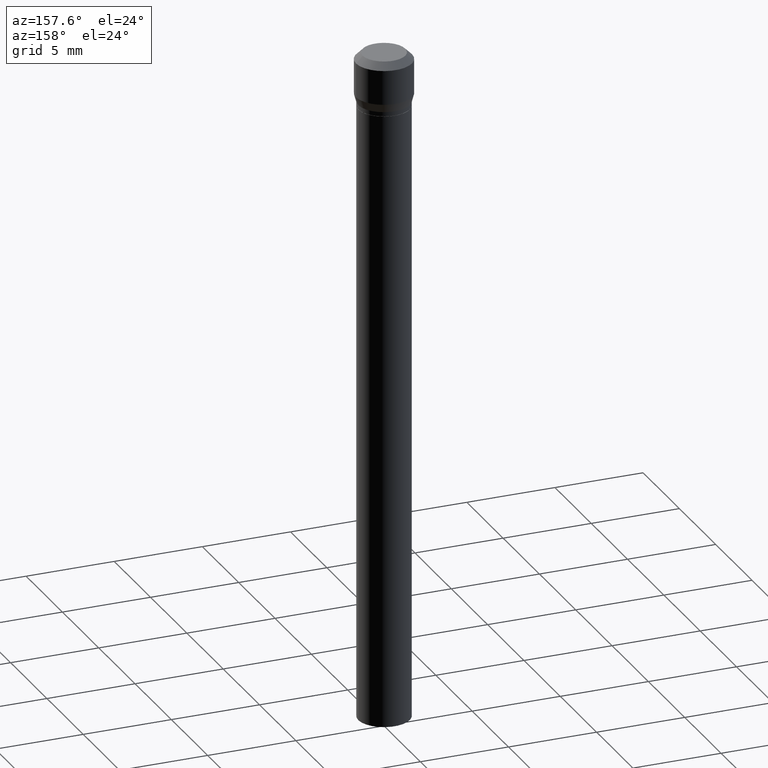
[diagram: clean part render]
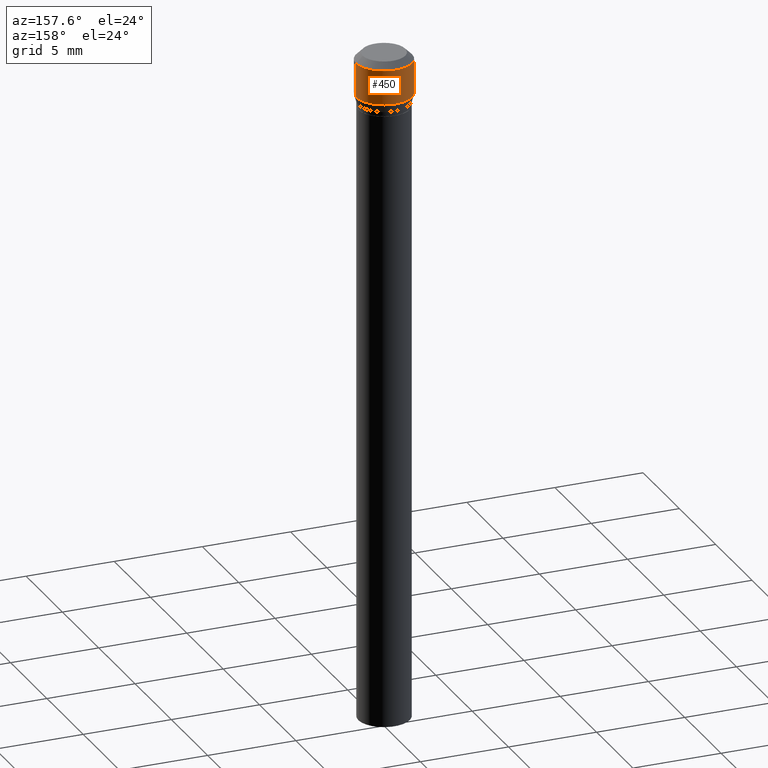
[diagram: same view with one face highlighted and labeled with its STEP entity id]
A machine part, auxiliary view. The second image highlights one B-rep face of the part: STEP entity #450.
In plain terms, the highlighted cylindrical surface (edge-blend (fillet) strip) has radius 1.5875 mm, axis along (-0, 0, 1).
Its self-contained STEP definition (entity closure, byte-faithful):
#4 = VECTOR ( 'NONE', #30, 39.37007874015748143 ) ;
#6 = VERTEX_POINT ( 'NONE', #465 ) ;
#19 = ORIENTED_EDGE ( 'NONE', *, *, #424, .F. ) ;
#29 = CARTESIAN_POINT ( 'NONE',  ( 0.06250000000000000000, -4.364351673553916694E-16, 3.047610484872459871E-30 ) ) ;
#30 = DIRECTION ( 'NONE',  ( -2.445468806185136877E-29, 3.491481338843145188E-15, 1.000000000000000000 ) ) ;
#34 = VERTEX_POINT ( 'NONE', #242 ) ;
#40 = DIRECTION ( 'NONE',  ( -2.445468806185136877E-29, 3.491481338843145188E-15, 1.000000000000000000 ) ) ;
#59 = AXIS2_PLACEMENT_3D ( 'NONE', #409, #463, #452 ) ;
#67 = DIRECTION ( 'NONE',  ( 1.000000000000000000, -6.982962677686266711E-15, 0.000000000000000000 ) ) ;
#93 = EDGE_LOOP ( 'NONE', ( #199, #461, #462, #19 ) ) ;
#97 = DIRECTION ( 'NONE',  ( 1.000000000000000000, -6.982962677686266711E-15, 4.876176775795935793E-29 ) ) ;
#115 = AXIS2_PLACEMENT_3D ( 'NONE', #269, #296, #67 ) ;
#130 = EDGE_CURVE ( 'NONE', #309, #6, #420, .T. ) ;
#131 = CARTESIAN_POINT ( 'NONE',  ( 0.000000000000000000, 0.000000000000000000, 0.000000000000000000 ) ) ;
#134 = CIRCLE ( 'NONE', #115, 0.06250000000000000000 ) ;
#140 = DIRECTION ( 'NONE',  ( -2.445468806185136597E-29, 3.491481338843145583E-15, 1.000000000000000000 ) ) ;
#190 = VECTOR ( 'NONE', #40, 39.37007874015748143 ) ;
#199 = ORIENTED_EDGE ( 'NONE', *, *, #433, .T. ) ;
#200 = CYLINDRICAL_SURFACE ( 'NONE', #397, 0.06250000000000000000 ) ;
#206 = VERTEX_POINT ( 'NONE', #367 ) ;
#234 = LINE ( 'NONE', #29, #190 ) ;
#237 = FACE_OUTER_BOUND ( 'NONE', #93, .T. ) ;
#242 = CARTESIAN_POINT ( 'NONE',  ( 0.06250000000000000000, -4.888073874380388472E-16, -0.01499999999999999944 ) ) ;
#269 = CARTESIAN_POINT ( 'NONE',  ( 2.233684995153270850E-30, -3.189110185215410040E-16, -0.09133974596215592434 ) ) ;
#296 = DIRECTION ( 'NONE',  ( -2.445468806185136597E-29, 3.491481338843145583E-15, 1.000000000000000000 ) ) ;
#309 = VERTEX_POINT ( 'NONE', #365 ) ;
#365 = CARTESIAN_POINT ( 'NONE',  ( -0.06250000000000000000, 1.251781913285216615E-16, -0.09133974596215592434 ) ) ;
#367 = CARTESIAN_POINT ( 'NONE',  ( 0.06250000000000000000, -7.553461858769327227E-16, -0.09133974596215592434 ) ) ;
#395 = EDGE_CURVE ( 'NONE', #34, #6, #396, .T. ) ;
#396 = CIRCLE ( 'NONE', #59, 0.06250000000000000000 ) ;
#397 = AXIS2_PLACEMENT_3D ( 'NONE', #131, #140, #97 ) ;
#409 = CARTESIAN_POINT ( 'NONE',  ( 3.668203209277705088E-31, -5.237222008264718399E-17, -0.01499999999999999944 ) ) ;
#420 = LINE ( 'NONE', #427, #4 ) ;
#424 = EDGE_CURVE ( 'NONE', #206, #34, #234, .T. ) ;
#427 = CARTESIAN_POINT ( 'NONE',  ( -0.06250000000000000000, 4.440892098500626162E-16, -3.074334431409316114E-30 ) ) ;
#433 = EDGE_CURVE ( 'NONE', #206, #309, #134, .T. ) ;
#450 = ADVANCED_FACE ( 'NONE', ( #237 ), #200, .T. ) ;
#452 = DIRECTION ( 'NONE',  ( 1.000000000000000000, -6.982962677686266711E-15, 0.000000000000000000 ) ) ;
#461 = ORIENTED_EDGE ( 'NONE', *, *, #130, .T. ) ;
#462 = ORIENTED_EDGE ( 'NONE', *, *, #395, .F. ) ;
#463 = DIRECTION ( 'NONE',  ( -2.445468806185136597E-29, 3.491481338843145583E-15, 1.000000000000000000 ) ) ;
#465 = CARTESIAN_POINT ( 'NONE',  ( -0.06250000000000000000, 2.584475905479685006E-16, -0.01499999999999999944 ) ) ;